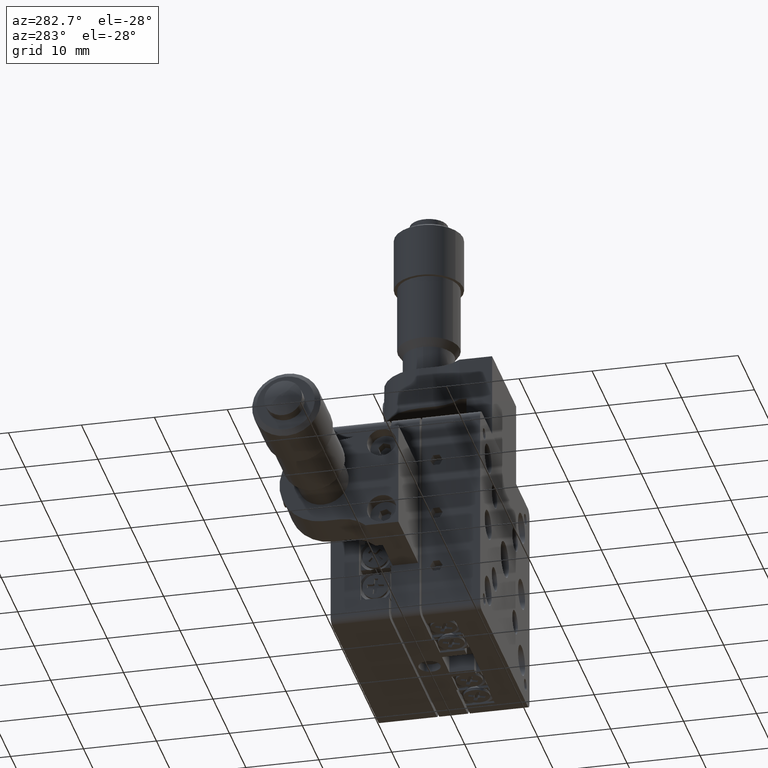
[diagram: clean part render]
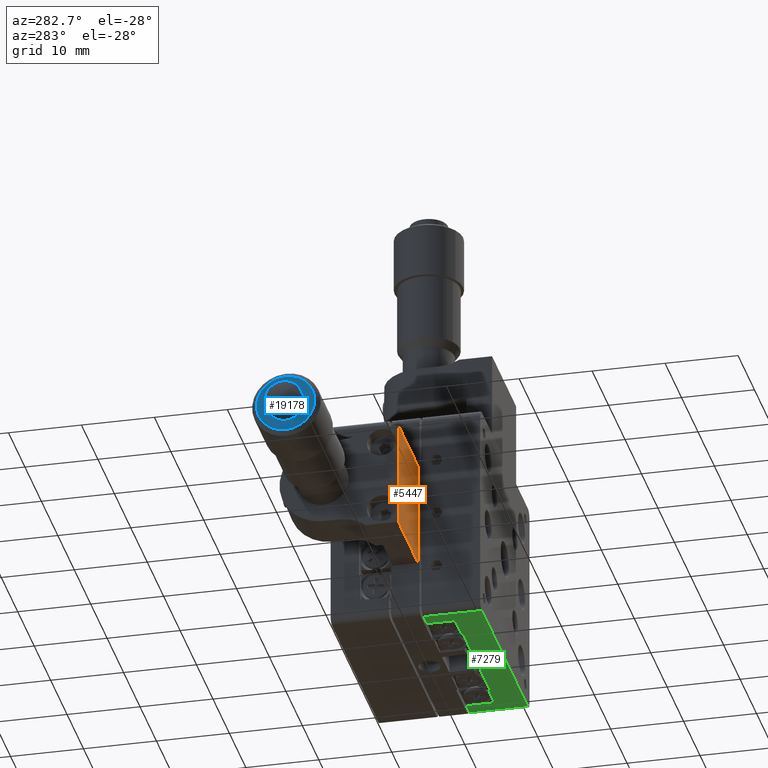
[diagram: same view with three faces highlighted in distinct colors, each labeled with its STEP entity id]
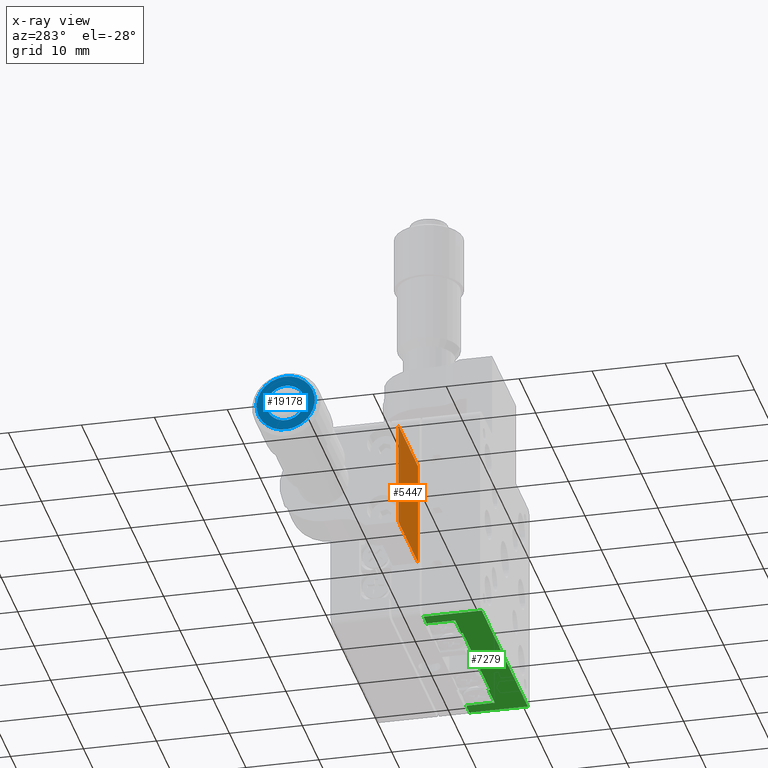
[diagram: x-ray of the same camera — body ghosted, the three highlighted faces saturated]
A machine part, auxiliary view with three faces highlighted in distinct colors.
The next image is the same camera in x-ray (body ghosted, the three faces saturated) — at least one of them is partly hidden behind the body in this view.
Their STEP definitions:

[orange] entity #5447 — the highlighted planar face has unit normal (0, 1, 0).
#333 = ORIENTED_EDGE ( 'NONE', *, *, #4611, .F. ) ;
#4223 = LINE ( 'NONE', #41345, #31396 ) ;
#4611 = EDGE_CURVE ( 'NONE', #32714, #13234, #6960, .T. ) ;
#5447 = ADVANCED_FACE ( 'NONE', ( #26793 ), #47699, .F. ) ;
#5813 = DIRECTION ( 'NONE',  ( 1.000000000000000000, -1.387778780781486700E-017, 1.640980433381780300E-016 ) ) ;
#6960 = LINE ( 'NONE', #54928, #18506 ) ;
#7762 = CARTESIAN_POINT ( 'NONE',  ( -27.00000000000000400, 8.500000000000032000, -7.299999999999997200 ) ) ;
#9716 = EDGE_CURVE ( 'NONE', #23311, #31348, #4223, .T. ) ;
#11102 = ORIENTED_EDGE ( 'NONE', *, *, #9716, .T. ) ;
#12342 = VECTOR ( 'NONE', #5813, 1000.000000000000000 ) ;
#12834 = LINE ( 'NONE', #7762, #16206 ) ;
#13234 = VERTEX_POINT ( 'NONE', #52738 ) ;
#16206 = VECTOR ( 'NONE', #38169, 1000.000000000000000 ) ;
#18506 = VECTOR ( 'NONE', #37386, 1000.000000000000000 ) ;
#20026 = ORIENTED_EDGE ( 'NONE', *, *, #46117, .T. ) ;
#21911 = CARTESIAN_POINT ( 'NONE',  ( -27.00000000000000400, 8.500000000000032000, -7.299999999999997200 ) ) ;
#23311 = VERTEX_POINT ( 'NONE', #36606 ) ;
#23709 = EDGE_CURVE ( 'NONE', #13234, #31348, #46956, .T. ) ;
#24051 = DIRECTION ( 'NONE',  ( -1.640980433381779500E-016, -3.693931011766737900E-015, 1.000000000000000000 ) ) ;
#26793 = FACE_OUTER_BOUND ( 'NONE', #27396, .T. ) ;
#27396 = EDGE_LOOP ( 'NONE', ( #11102, #34759, #333, #20026 ) ) ;
#31348 = VERTEX_POINT ( 'NONE', #43563 ) ;
#31396 = VECTOR ( 'NONE', #24051, 1000.000000000000000 ) ;
#31817 = CARTESIAN_POINT ( 'NONE',  ( -27.00000000000000400, 8.499999999999982200, 7.300000000000009600 ) ) ;
#32714 = VERTEX_POINT ( 'NONE', #44694 ) ;
#34759 = ORIENTED_EDGE ( 'NONE', *, *, #23709, .F. ) ;
#36606 = CARTESIAN_POINT ( 'NONE',  ( -15.00000000000000200, 8.500000000000032000, -7.299999999999995400 ) ) ;
#37386 = DIRECTION ( 'NONE',  ( -1.640980433381779500E-016, -3.693931011766737900E-015, 1.000000000000000000 ) ) ;
#38169 = DIRECTION ( 'NONE',  ( 1.000000000000000000, -1.387778780781486700E-017, 1.640980433381780300E-016 ) ) ;
#41345 = CARTESIAN_POINT ( 'NONE',  ( -15.00000000000000200, 8.500000000000032000, -7.299999999999995400 ) ) ;
#43563 = CARTESIAN_POINT ( 'NONE',  ( -15.00000000000000500, 8.499999999999982200, 7.300000000000011400 ) ) ;
#44694 = CARTESIAN_POINT ( 'NONE',  ( -27.00000000000000400, 8.500000000000032000, -7.299999999999997200 ) ) ;
#45569 = DIRECTION ( 'NONE',  ( 1.387778780781340000E-017, 1.000000000000000000, 3.693931011766737900E-015 ) ) ;
#46117 = EDGE_CURVE ( 'NONE', #32714, #23311, #12834, .T. ) ;
#46956 = LINE ( 'NONE', #31817, #12342 ) ;
#47363 = AXIS2_PLACEMENT_3D ( 'NONE', #21911, #45569, #50129 ) ;
#47699 = PLANE ( 'NONE',  #47363 ) ;
#50129 = DIRECTION ( 'NONE',  ( 1.640980433381779500E-016, 3.693931011766737900E-015, -1.000000000000000000 ) ) ;
#52738 = CARTESIAN_POINT ( 'NONE',  ( -27.00000000000000400, 8.499999999999982200, 7.300000000000009600 ) ) ;
#54928 = CARTESIAN_POINT ( 'NONE',  ( -27.00000000000000400, 8.500000000000032000, -7.299999999999997200 ) ) ;

[blue] entity #19178 — the highlighted planar face has unit normal (-1, 0, -0).
#1117 = CARTESIAN_POINT ( 'NONE',  ( -49.89999999999998400, 18.79999999999948600, 8.166883287340522900E-013 ) ) ;
#2136 = AXIS2_PLACEMENT_3D ( 'NONE', #50245, #45884, #50789 ) ;
#3917 = AXIS2_PLACEMENT_3D ( 'NONE', #51492, #17347, #17146 ) ;
#4536 = ORIENTED_EDGE ( 'NONE', *, *, #48699, .F. ) ;
#5311 = ORIENTED_EDGE ( 'NONE', *, *, #40340, .F. ) ;
#10813 = EDGE_CURVE ( 'NONE', #23676, #30817, #14256, .T. ) ;
#11380 = DIRECTION ( 'NONE',  ( -1.000000000000000000, 1.387778780781204400E-017, -4.163336342335124000E-017 ) ) ;
#12499 = ORIENTED_EDGE ( 'NONE', *, *, #49358, .T. ) ;
#14256 = CIRCLE ( 'NONE', #46119, 3.999999999999998200 ) ;
#15720 = DIRECTION ( 'NONE',  ( 0.0000000000000000000, -0.6407392623874319500, 0.7677585542572675800 ) ) ;
#17146 = DIRECTION ( 'NONE',  ( 0.0000000000000000000, -0.6407392623874319500, 0.7677585542572675800 ) ) ;
#17347 = DIRECTION ( 'NONE',  ( -1.000000000000000000, 1.387778780781204400E-017, -4.163336342335124000E-017 ) ) ;
#18324 = CARTESIAN_POINT ( 'NONE',  ( -49.89999999999998400, 21.36295704954921200, -3.071034217028252300 ) ) ;
#19049 = DIRECTION ( 'NONE',  ( -1.000000000000000000, 1.387778780781204400E-017, -4.163336342335124000E-017 ) ) ;
#19178 = ADVANCED_FACE ( 'NONE', ( #43163, #55385 ), #35667, .T. ) ;
#22214 = ORIENTED_EDGE ( 'NONE', *, *, #10813, .T. ) ;
#22819 = CIRCLE ( 'NONE', #54367, 2.599999999999998300 ) ;
#23676 = VERTEX_POINT ( 'NONE', #18324 ) ;
#25446 = VERTEX_POINT ( 'NONE', #25885 ) ;
#25592 = EDGE_LOOP ( 'NONE', ( #4536, #5311 ) ) ;
#25885 = CARTESIAN_POINT ( 'NONE',  ( -49.89999999999998400, 17.13407791779216500, 1.996172241069711600 ) ) ;
#27157 = CARTESIAN_POINT ( 'NONE',  ( -49.89999999999998400, 16.23704295044976200, 3.071034217029886100 ) ) ;
#27450 = DIRECTION ( 'NONE',  ( -4.085641443432630700E-017, -0.6407392623874318400, 0.7677585542572678000 ) ) ;
#30817 = VERTEX_POINT ( 'NONE', #27157 ) ;
#31280 = CIRCLE ( 'NONE', #3917, 3.999999999999998200 ) ;
#32000 = DIRECTION ( 'NONE',  ( 0.0000000000000000000, -0.6407392623874316200, 0.7677585542572678000 ) ) ;
#35667 = PLANE ( 'NONE',  #37776 ) ;
#35847 = EDGE_LOOP ( 'NONE', ( #22214, #12499 ) ) ;
#37426 = CARTESIAN_POINT ( 'NONE',  ( -49.89999999999998400, 18.79999999999948600, 8.166883287340522900E-013 ) ) ;
#37776 = AXIS2_PLACEMENT_3D ( 'NONE', #44299, #44683, #27450 ) ;
#40340 = EDGE_CURVE ( 'NONE', #43593, #25446, #22819, .T. ) ;
#42883 = CIRCLE ( 'NONE', #2136, 2.599999999999998300 ) ;
#43163 = FACE_OUTER_BOUND ( 'NONE', #35847, .T. ) ;
#43593 = VERTEX_POINT ( 'NONE', #49638 ) ;
#44299 = CARTESIAN_POINT ( 'NONE',  ( -49.89999999999998400, 17.13407791779216900, 1.996172241069709800 ) ) ;
#44683 = DIRECTION ( 'NONE',  ( -1.000000000000000000, 1.387778780781202100E-017, -4.163336342335121500E-017 ) ) ;
#45884 = DIRECTION ( 'NONE',  ( -1.000000000000000000, 1.387778780781204400E-017, -4.163336342335124000E-017 ) ) ;
#46119 = AXIS2_PLACEMENT_3D ( 'NONE', #37426, #11380, #15720 ) ;
#48699 = EDGE_CURVE ( 'NONE', #25446, #43593, #42883, .T. ) ;
#49358 = EDGE_CURVE ( 'NONE', #30817, #23676, #31280, .T. ) ;
#49638 = CARTESIAN_POINT ( 'NONE',  ( -49.89999999999998400, 20.46592208220681300, -1.996172241068077800 ) ) ;
#50245 = CARTESIAN_POINT ( 'NONE',  ( -49.89999999999998400, 18.79999999999948600, 8.166883287340522900E-013 ) ) ;
#50789 = DIRECTION ( 'NONE',  ( 0.0000000000000000000, -0.6407392623874316200, 0.7677585542572678000 ) ) ;
#51492 = CARTESIAN_POINT ( 'NONE',  ( -49.89999999999998400, 18.79999999999948600, 8.166883287340522900E-013 ) ) ;
#54367 = AXIS2_PLACEMENT_3D ( 'NONE', #1117, #19049, #32000 ) ;
#55385 = FACE_BOUND ( 'NONE', #25592, .T. ) ;

[green] entity #7279 — the highlighted planar face has unit normal (-0, -0, 1).
#728 = LINE ( 'NONE', #7100, #42056 ) ;
#1270 = VECTOR ( 'NONE', #21118, 1000.000000000000000 ) ;
#1532 = CARTESIAN_POINT ( 'NONE',  ( -13.99999999999998000, -4.683753385137379200E-014, -15.00000000000001400 ) ) ;
#2386 = ORIENTED_EDGE ( 'NONE', *, *, #7983, .T. ) ;
#3384 = DIRECTION ( 'NONE',  ( -2.014013955609072600E-015, 1.000000000000000000, -2.667846532908724100E-029 ) ) ;
#4693 = CARTESIAN_POINT ( 'NONE',  ( 14.00000000000004600, -1.474514954580286000E-013, -15.00000000000001400 ) ) ;
#4867 = LINE ( 'NONE', #46823, #8184 ) ;
#5097 = DIRECTION ( 'NONE',  ( 4.490709798323574300E-016, 1.000000000000000000, -2.667090451084242700E-029 ) ) ;
#6373 = LINE ( 'NONE', #18012, #33554 ) ;
#7100 = CARTESIAN_POINT ( 'NONE',  ( 8.250000000000030200, 3.899999999999871600, -15.00000000000001400 ) ) ;
#7132 = CARTESIAN_POINT ( 'NONE',  ( -8.249999999999984000, 3.899999999999935500, -15.00000000000001400 ) ) ;
#7198 = CARTESIAN_POINT ( 'NONE',  ( -12.00000000000000200, 7.999999999999952000, -15.00000000000001400 ) ) ;
#7279 = ADVANCED_FACE ( 'NONE', ( #49203 ), #12197, .F. ) ;
#7983 = EDGE_CURVE ( 'NONE', #53275, #13305, #6373, .T. ) ;
#8184 = VECTOR ( 'NONE', #20836, 1000.000000000000000 ) ;
#8564 = LINE ( 'NONE', #32858, #18762 ) ;
#10086 = LINE ( 'NONE', #18560, #29816 ) ;
#10392 = EDGE_CURVE ( 'NONE', #44378, #24723, #36752, .T. ) ;
#12197 = PLANE ( 'NONE',  #40904 ) ;
#12287 = EDGE_CURVE ( 'NONE', #13305, #44378, #43267, .T. ) ;
#12290 = LINE ( 'NONE', #52296, #19740 ) ;
#12389 = DIRECTION ( 'NONE',  ( -1.000000000000000000, 3.996802888650565100E-015, -7.133644514010314600E-030 ) ) ;
#12598 = VERTEX_POINT ( 'NONE', #22494 ) ;
#13037 = CARTESIAN_POINT ( 'NONE',  ( 8.250000000000030200, 3.899999999999871600, -15.00000000000001400 ) ) ;
#13305 = VERTEX_POINT ( 'NONE', #1532 ) ;
#13409 = VERTEX_POINT ( 'NONE', #41293 ) ;
#13708 = EDGE_CURVE ( 'NONE', #13409, #49036, #15813, .T. ) ;
#14995 = ORIENTED_EDGE ( 'NONE', *, *, #49033, .T. ) ;
#15650 = DIRECTION ( 'NONE',  ( 1.133815263898443500E-014, -1.000000000000000000, 2.667539587823838000E-029 ) ) ;
#15724 = DIRECTION ( 'NONE',  ( 1.000000000000000000, -3.996802888650564300E-015, 7.133644514010314600E-030 ) ) ;
#15813 = LINE ( 'NONE', #21335, #32853 ) ;
#16190 = DIRECTION ( 'NONE',  ( 6.009082120783700800E-015, 1.000000000000000000, -2.667250698332179900E-029 ) ) ;
#16972 = DIRECTION ( 'NONE',  ( 1.000000000000000000, -4.101937644770370700E-015, 7.133644514010314600E-030 ) ) ;
#17173 = CARTESIAN_POINT ( 'NONE',  ( -8.249999999999985800, 4.099999999999935700, -15.00000000000001400 ) ) ;
#17713 = EDGE_CURVE ( 'NONE', #35289, #32472, #10086, .T. ) ;
#17925 = VERTEX_POINT ( 'NONE', #17173 ) ;
#18012 = CARTESIAN_POINT ( 'NONE',  ( -14.99999999999998000, -3.295974604355933500E-014, -15.00000000000001400 ) ) ;
#18560 = CARTESIAN_POINT ( 'NONE',  ( 12.00000000000003000, 7.999999999999854300, -15.00000000000001400 ) ) ;
#18762 = VECTOR ( 'NONE', #15724, 1000.000000000000000 ) ;
#18896 = CARTESIAN_POINT ( 'NONE',  ( 12.00000000000002800, 4.099999999999854000, -15.00000000000001400 ) ) ;
#19740 = VECTOR ( 'NONE', #5097, 1000.000000000000000 ) ;
#20495 = VECTOR ( 'NONE', #15650, 1000.000000000000000 ) ;
#20836 = DIRECTION ( 'NONE',  ( 4.888539715480898700E-015, -1.000000000000000000, 2.667084525145951800E-029 ) ) ;
#20928 = CARTESIAN_POINT ( 'NONE',  ( -14.99999999999999600, 7.999999999999970700, -15.00000000000001400 ) ) ;
#21118 = DIRECTION ( 'NONE',  ( 2.881375693597476600E-015, -1.000000000000000000, 2.667244679801103100E-029 ) ) ;
#21335 = CARTESIAN_POINT ( 'NONE',  ( -8.249999999999984000, 3.899999999999935500, -15.00000000000001400 ) ) ;
#22494 = CARTESIAN_POINT ( 'NONE',  ( -11.99999999999998200, 4.099999999999950800, -15.00000000000001400 ) ) ;
#23964 = ORIENTED_EDGE ( 'NONE', *, *, #17713, .T. ) ;
#24313 = LINE ( 'NONE', #27416, #54183 ) ;
#24723 = VERTEX_POINT ( 'NONE', #7198 ) ;
#25158 = EDGE_LOOP ( 'NONE', ( #23964, #55531, #2386, #34143, #42431, #30214, #44061, #27896, #38042, #49222, #41434, #14995 ) ) ;
#25672 = EDGE_CURVE ( 'NONE', #50440, #32761, #24313, .T. ) ;
#26561 = DIRECTION ( 'NONE',  ( -1.000000000000000000, 4.112451120382351200E-015, -7.136726001921334200E-030 ) ) ;
#27416 = CARTESIAN_POINT ( 'NONE',  ( 8.250000000000032000, 4.099999999999869100, -15.00000000000001400 ) ) ;
#27896 = ORIENTED_EDGE ( 'NONE', *, *, #48270, .T. ) ;
#29038 = EDGE_CURVE ( 'NONE', #49036, #50440, #728, .T. ) ;
#29816 = VECTOR ( 'NONE', #36265, 1000.000000000000000 ) ;
#30058 = LINE ( 'NONE', #7132, #20495 ) ;
#30176 = EDGE_CURVE ( 'NONE', #32472, #53275, #37219, .T. ) ;
#30214 = ORIENTED_EDGE ( 'NONE', *, *, #35739, .T. ) ;
#30619 = EDGE_CURVE ( 'NONE', #12598, #17925, #8564, .T. ) ;
#32472 = VERTEX_POINT ( 'NONE', #38145 ) ;
#32761 = VERTEX_POINT ( 'NONE', #18896 ) ;
#32853 = VECTOR ( 'NONE', #16972, 1000.000000000000000 ) ;
#32858 = CARTESIAN_POINT ( 'NONE',  ( -11.99999999999998200, 4.099999999999950800, -15.00000000000001400 ) ) ;
#33554 = VECTOR ( 'NONE', #26561, 1000.000000000000000 ) ;
#34143 = ORIENTED_EDGE ( 'NONE', *, *, #12287, .T. ) ;
#35229 = VECTOR ( 'NONE', #3384, 1000.000000000000000 ) ;
#35289 = VERTEX_POINT ( 'NONE', #37169 ) ;
#35739 = EDGE_CURVE ( 'NONE', #24723, #12598, #4867, .T. ) ;
#36265 = DIRECTION ( 'NONE',  ( 1.000000000000000000, -3.017117805592660600E-015, 7.133644514010314600E-030 ) ) ;
#36752 = LINE ( 'NONE', #20928, #55662 ) ;
#37169 = CARTESIAN_POINT ( 'NONE',  ( 12.00000000000003000, 7.999999999999854300, -15.00000000000001400 ) ) ;
#37219 = LINE ( 'NONE', #47842, #1270 ) ;
#38042 = ORIENTED_EDGE ( 'NONE', *, *, #13708, .T. ) ;
#38145 = CARTESIAN_POINT ( 'NONE',  ( 14.00000000000002300, 7.999999999999854300, -15.00000000000001400 ) ) ;
#39555 = CARTESIAN_POINT ( 'NONE',  ( 8.250000000000032000, 4.099999999999869100, -15.00000000000001400 ) ) ;
#40904 = AXIS2_PLACEMENT_3D ( 'NONE', #55614, #51072, #12389 ) ;
#41293 = CARTESIAN_POINT ( 'NONE',  ( -8.249999999999984000, 3.899999999999935500, -15.00000000000001400 ) ) ;
#41434 = ORIENTED_EDGE ( 'NONE', *, *, #25672, .T. ) ;
#42056 = VECTOR ( 'NONE', #16190, 1000.000000000000000 ) ;
#42431 = ORIENTED_EDGE ( 'NONE', *, *, #10392, .T. ) ;
#42567 = DIRECTION ( 'NONE',  ( 1.000000000000000000, -5.221409242472944000E-015, 7.133644514010314600E-030 ) ) ;
#42734 = CARTESIAN_POINT ( 'NONE',  ( -13.99999999999999600, 7.999999999999956500, -15.00000000000001400 ) ) ;
#43267 = LINE ( 'NONE', #55276, #35229 ) ;
#44061 = ORIENTED_EDGE ( 'NONE', *, *, #30619, .T. ) ;
#44378 = VERTEX_POINT ( 'NONE', #42734 ) ;
#46823 = CARTESIAN_POINT ( 'NONE',  ( -11.99999999999998200, 4.099999999999950800, -15.00000000000001400 ) ) ;
#47842 = CARTESIAN_POINT ( 'NONE',  ( 14.00000000000003700, 4.099999999999852200, -15.00000000000001400 ) ) ;
#48254 = DIRECTION ( 'NONE',  ( 1.000000000000000000, -4.228099352114138900E-015, 7.133644514010314600E-030 ) ) ;
#48270 = EDGE_CURVE ( 'NONE', #17925, #13409, #30058, .T. ) ;
#49033 = EDGE_CURVE ( 'NONE', #32761, #35289, #12290, .T. ) ;
#49036 = VERTEX_POINT ( 'NONE', #13037 ) ;
#49203 = FACE_OUTER_BOUND ( 'NONE', #25158, .T. ) ;
#49222 = ORIENTED_EDGE ( 'NONE', *, *, #29038, .T. ) ;
#50440 = VERTEX_POINT ( 'NONE', #39555 ) ;
#51072 = DIRECTION ( 'NONE',  ( -7.133644514010421100E-030, -2.667395143078000500E-029, 1.000000000000000000 ) ) ;
#52296 = CARTESIAN_POINT ( 'NONE',  ( 12.00000000000002800, 4.099999999999854000, -15.00000000000001400 ) ) ;
#53275 = VERTEX_POINT ( 'NONE', #4693 ) ;
#54183 = VECTOR ( 'NONE', #48254, 1000.000000000000000 ) ;
#55276 = CARTESIAN_POINT ( 'NONE',  ( -13.99999999999998800, 4.099999999999968600, -15.00000000000001400 ) ) ;
#55531 = ORIENTED_EDGE ( 'NONE', *, *, #30176, .T. ) ;
#55614 = CARTESIAN_POINT ( 'NONE',  ( -14.99999999999998900, 4.099999999999968600, -15.00000000000001400 ) ) ;
#55662 = VECTOR ( 'NONE', #42567, 1000.000000000000000 ) ;